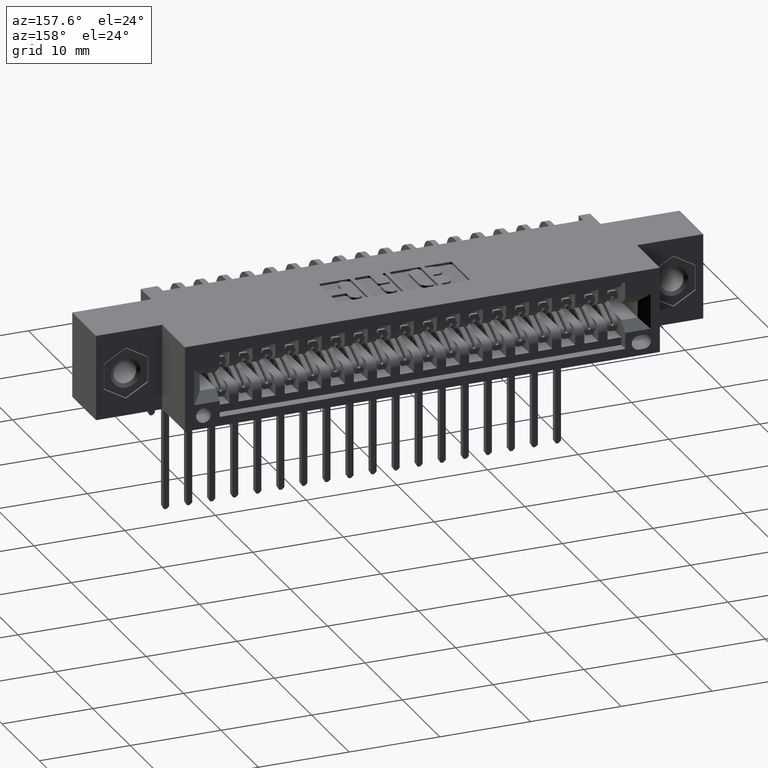
[diagram: clean part render]
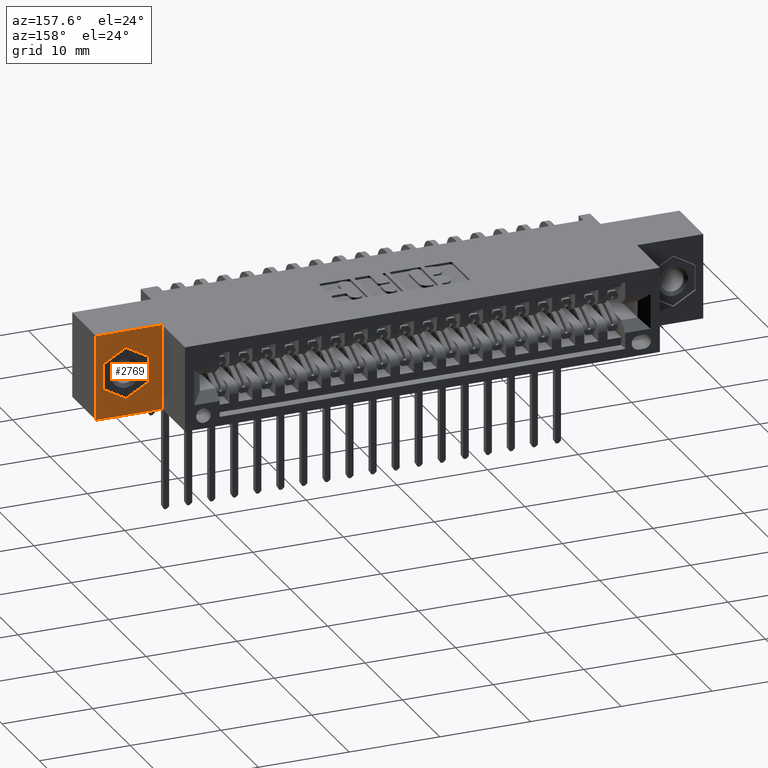
[diagram: same view with one face highlighted and labeled with its STEP entity id]
A machine part, auxiliary view. The second image highlights one B-rep face of the part: STEP entity #2769.
In plain terms, the highlighted planar face has unit normal (0, -1, 0).
Its self-contained STEP definition (entity closure, byte-faithful):
#638 = EDGE_CURVE ( 'NONE', #4803, #11611, #11548, .T. ) ;
#856 = VERTEX_POINT ( 'NONE', #4024 ) ;
#895 = ORIENTED_EDGE ( 'NONE', *, *, #3541, .F. ) ;
#968 = VECTOR ( 'NONE', #6483, 39.37007874015748900 ) ;
#1280 = DIRECTION ( 'NONE',  ( 1.000000000000000000, -0.0000000000000000000, -0.0000000000000000000 ) ) ;
#1702 = ORIENTED_EDGE ( 'NONE', *, *, #11300, .T. ) ;
#2049 = CARTESIAN_POINT ( 'NONE',  ( 2.601500000000000100, 0.3599999999999999900, -0.1292856990232010800 ) ) ;
#2139 = EDGE_LOOP ( 'NONE', ( #3122, #16422, #895, #19734, #12679, #10609 ) ) ;
#2201 = CARTESIAN_POINT ( 'NONE',  ( 2.634999999999999800, 0.3599999999999999900, 0.0000000000000000000 ) ) ;
#2213 = CARTESIAN_POINT ( 'NONE',  ( 2.347499999999999700, 0.3599999999999999900, 0.0000000000000000000 ) ) ;
#2442 = VECTOR ( 'NONE', #15318, 39.37007874015748900 ) ;
#2769 = ADVANCED_FACE ( 'NONE', ( #11900, #19025 ), #15806, .F. ) ;
#2932 = LINE ( 'NONE', #16243, #6735 ) ;
#3056 = VERTEX_POINT ( 'NONE', #2213 ) ;
#3092 = VECTOR ( 'NONE', #4582, 39.37007874015748100 ) ;
#3099 = VERTEX_POINT ( 'NONE', #8853 ) ;
#3122 = ORIENTED_EDGE ( 'NONE', *, *, #15480, .F. ) ;
#3541 = EDGE_CURVE ( 'NONE', #17382, #856, #6488, .T. ) ;
#3919 = DIRECTION ( 'NONE',  ( -1.000000000000000000, 0.0000000000000000000, 9.502079977962658600E-016 ) ) ;
#4024 = CARTESIAN_POINT ( 'NONE',  ( 2.601500000000000100, 0.3599999999999999900, -0.1292856990232010800 ) ) ;
#4582 = DIRECTION ( 'NONE',  ( 0.0000000000000000000, 0.0000000000000000000, -1.000000000000000000 ) ) ;
#4803 = VERTEX_POINT ( 'NONE', #2201 ) ;
#5379 = DIRECTION ( 'NONE',  ( 0.8660254037844397100, -0.0000000000000000000, -0.4999999999999981700 ) ) ;
#5388 = DIRECTION ( 'NONE',  ( -0.0000000000000000000, -0.0000000000000000000, -1.000000000000000000 ) ) ;
#5954 = EDGE_CURVE ( 'NONE', #19852, #10284, #13474, .T. ) ;
#6410 = EDGE_CURVE ( 'NONE', #14441, #3056, #8367, .T. ) ;
#6483 = DIRECTION ( 'NONE',  ( -0.8660254037844382600, -0.0000000000000000000, -0.5000000000000004400 ) ) ;
#6488 = LINE ( 'NONE', #2049, #10665 ) ;
#6527 = DIRECTION ( 'NONE',  ( 0.0000000000000000000, -1.000000000000000000, -0.0000000000000000000 ) ) ;
#6665 = DIRECTION ( 'NONE',  ( -0.8660254037844393700, -0.0000000000000000000, 0.4999999999999987200 ) ) ;
#6735 = VECTOR ( 'NONE', #5388, 39.37007874015748100 ) ;
#8367 = LINE ( 'NONE', #12728, #16073 ) ;
#8544 = VERTEX_POINT ( 'NONE', #8910 ) ;
#8853 = CARTESIAN_POINT ( 'NONE',  ( 2.601500000000000100, 0.3599999999999999900, -0.2407143009767988300 ) ) ;
#8876 = LINE ( 'NONE', #14882, #16580 ) ;
#8910 = CARTESIAN_POINT ( 'NONE',  ( 2.408500000000000100, 0.3599999999999999900, -0.1292856990232011400 ) ) ;
#9074 = LINE ( 'NONE', #15753, #968 ) ;
#9146 = EDGE_CURVE ( 'NONE', #11611, #14441, #8876, .T. ) ;
#9202 = CARTESIAN_POINT ( 'NONE',  ( 2.504999999999999400, 0.3599999999999999900, -0.07357139804640221200 ) ) ;
#9377 = VECTOR ( 'NONE', #6665, 39.37007874015748100 ) ;
#9763 = VECTOR ( 'NONE', #1280, 39.37007874015748100 ) ;
#9782 = CARTESIAN_POINT ( 'NONE',  ( 2.505000000000000300, 0.3599999999999999900, -0.2964286019535978300 ) ) ;
#9966 = LINE ( 'NONE', #20052, #18128 ) ;
#10250 = LINE ( 'NONE', #15435, #9763 ) ;
#10284 = VERTEX_POINT ( 'NONE', #19240 ) ;
#10609 = ORIENTED_EDGE ( 'NONE', *, *, #5954, .F. ) ;
#10665 = VECTOR ( 'NONE', #5379, 39.37007874015748100 ) ;
#10939 = DIRECTION ( 'NONE',  ( -0.0000000000000000000, -0.0000000000000000000, 1.000000000000000000 ) ) ;
#11300 = EDGE_CURVE ( 'NONE', #3056, #4803, #10250, .T. ) ;
#11337 = CARTESIAN_POINT ( 'NONE',  ( 2.408500000000000100, 0.3599999999999999900, -0.2407143009767990200 ) ) ;
#11548 = LINE ( 'NONE', #15326, #3092 ) ;
#11584 = CARTESIAN_POINT ( 'NONE',  ( 2.347499999999999700, 0.3599999999999999900, -0.3699999999999997200 ) ) ;
#11611 = VERTEX_POINT ( 'NONE', #13010 ) ;
#11900 = FACE_BOUND ( 'NONE', #2139, .T. ) ;
#12305 = ORIENTED_EDGE ( 'NONE', *, *, #638, .T. ) ;
#12602 = EDGE_CURVE ( 'NONE', #8544, #17382, #19053, .T. ) ;
#12679 = ORIENTED_EDGE ( 'NONE', *, *, #17210, .F. ) ;
#12728 = CARTESIAN_POINT ( 'NONE',  ( 2.347499999999999700, 0.3599999999999999900, 0.0000000000000000000 ) ) ;
#13010 = CARTESIAN_POINT ( 'NONE',  ( 2.634999999999999800, 0.3600000000000000400, -0.3700000000000000000 ) ) ;
#13474 = LINE ( 'NONE', #11337, #9377 ) ;
#14253 = EDGE_LOOP ( 'NONE', ( #1702, #12305, #18113, #17529 ) ) ;
#14441 = VERTEX_POINT ( 'NONE', #11584 ) ;
#14584 = CARTESIAN_POINT ( 'NONE',  ( 2.504999999999999400, 0.3599999999999999900, -0.07357139804640221200 ) ) ;
#14882 = CARTESIAN_POINT ( 'NONE',  ( 2.634999999999999800, 0.3599999999999999900, -0.3700000000000000000 ) ) ;
#15318 = DIRECTION ( 'NONE',  ( 0.8660254037844377100, -0.0000000000000000000, 0.5000000000000015500 ) ) ;
#15326 = CARTESIAN_POINT ( 'NONE',  ( 2.634999999999999800, 0.3599999999999999900, 0.0000000000000000000 ) ) ;
#15435 = CARTESIAN_POINT ( 'NONE',  ( 2.634999999999999800, 0.3599999999999999900, 0.0000000000000000000 ) ) ;
#15480 = EDGE_CURVE ( 'NONE', #3099, #19852, #9074, .T. ) ;
#15753 = CARTESIAN_POINT ( 'NONE',  ( 2.505000000000000300, 0.3599999999999999900, -0.2964286019535978300 ) ) ;
#15799 = DIRECTION ( 'NONE',  ( -7.383372955849365900E-016, -0.0000000000000000000, 1.000000000000000000 ) ) ;
#15806 = PLANE ( 'NONE',  #16701 ) ;
#16073 = VECTOR ( 'NONE', #15799, 39.37007874015748100 ) ;
#16243 = CARTESIAN_POINT ( 'NONE',  ( 2.601500000000000100, 0.3599999999999999900, -0.2407143009767989100 ) ) ;
#16422 = ORIENTED_EDGE ( 'NONE', *, *, #18048, .F. ) ;
#16580 = VECTOR ( 'NONE', #3919, 39.37007874015748100 ) ;
#16701 = AXIS2_PLACEMENT_3D ( 'NONE', #20316, #6527, #17337 ) ;
#17210 = EDGE_CURVE ( 'NONE', #10284, #8544, #9966, .T. ) ;
#17337 = DIRECTION ( 'NONE',  ( 0.0000000000000000000, 0.0000000000000000000, -1.000000000000000000 ) ) ;
#17382 = VERTEX_POINT ( 'NONE', #14584 ) ;
#17529 = ORIENTED_EDGE ( 'NONE', *, *, #6410, .T. ) ;
#18048 = EDGE_CURVE ( 'NONE', #856, #3099, #2932, .T. ) ;
#18113 = ORIENTED_EDGE ( 'NONE', *, *, #9146, .T. ) ;
#18128 = VECTOR ( 'NONE', #10939, 39.37007874015748100 ) ;
#19025 = FACE_OUTER_BOUND ( 'NONE', #14253, .T. ) ;
#19053 = LINE ( 'NONE', #9202, #2442 ) ;
#19240 = CARTESIAN_POINT ( 'NONE',  ( 2.408500000000000100, 0.3599999999999999900, -0.2407143009767990200 ) ) ;
#19734 = ORIENTED_EDGE ( 'NONE', *, *, #12602, .F. ) ;
#19852 = VERTEX_POINT ( 'NONE', #9782 ) ;
#20052 = CARTESIAN_POINT ( 'NONE',  ( 2.408500000000000100, 0.3599999999999999900, -0.1292856990232011400 ) ) ;
#20316 = CARTESIAN_POINT ( 'NONE',  ( 2.347499999999999700, 0.3599999999999999900, 0.0000000000000000000 ) ) ;